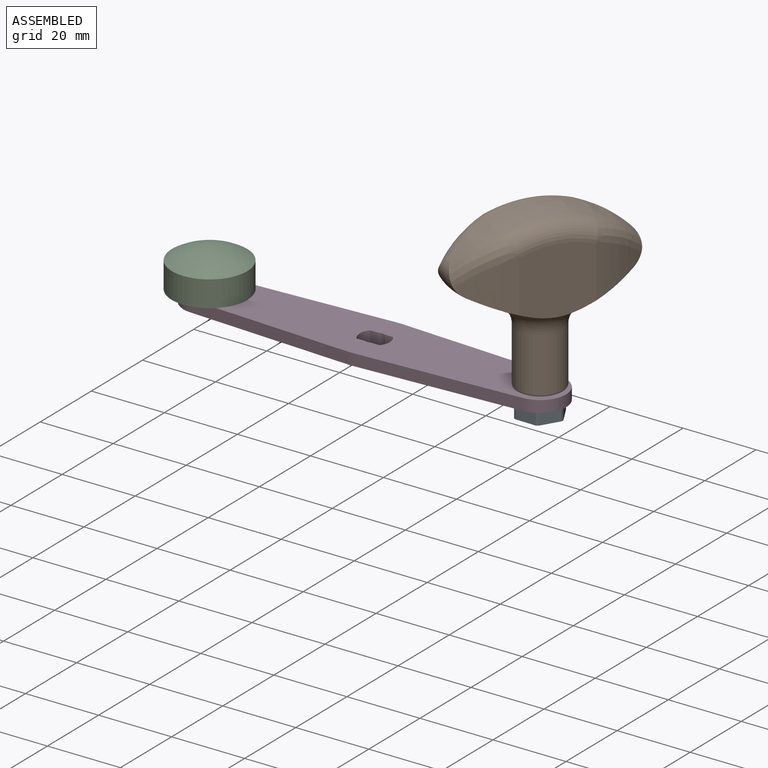
[diagram: assembled view]
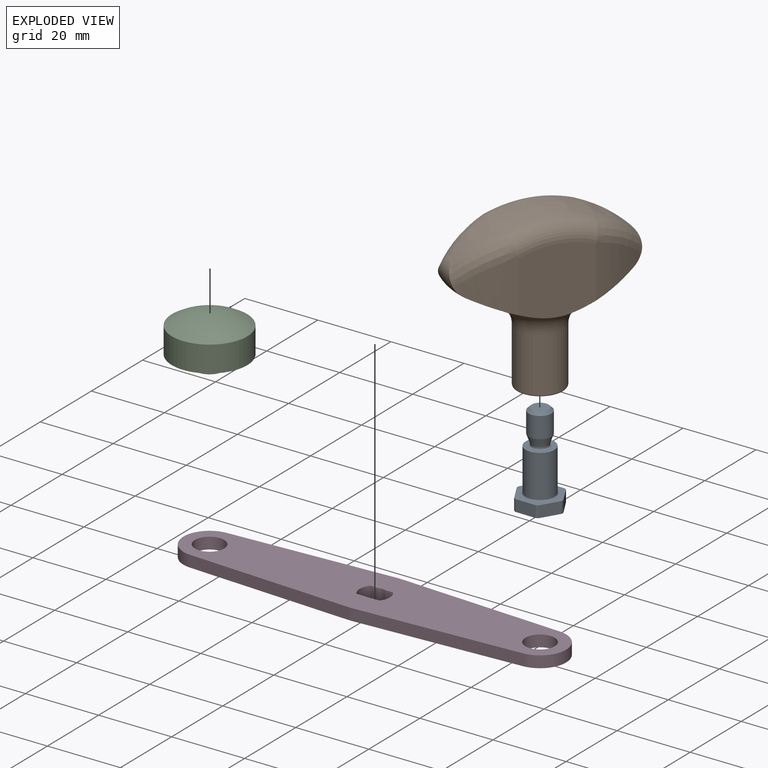
[diagram: exploded view]
GUIDED TOUR — MATED ASSEMBLY (Onshape document a1de85fccab7fe96265ce23a, AutoMate assembly a1de85fccab7fe96265ce23a_24a8b1a81597c6022ee2a4ad_ce4add7e644d38ade0d1b1f0_default)

This assembly has 4 components, labeled P0..P3 below (a component is one placed occurrence of a part; the same part can appear more than once), held together by 3 mates. A mate is a constraint between two components; its type names the relative motion it leaves free:
  FASTENED — locks the two components together rigidly (no relative motion),
  REVOLUTE — leaves rotation about the listed axis free (a hinge).
Axis/direction vectors are unit vectors and 'through' points are millimeter coordinates, both in the assembly's world frame.

MATES
  1. FASTENED "Fastened 1": P0 <-> P1, direction (0.000, 0.000, 1.000) through (45.25, -0.51, 8.32) mm
  2. FASTENED "Fastened 2": P2 <-> P3, direction (0.000, 0.000, -1.000) through (-45.25, -0.51, 0.00) mm
  3. REVOLUTE "Revolute 1": P1 <-> P3, axis (0.000, 0.000, -1.000) through (45.25, -0.51, 0.38) mm

ASSEMBLY ORDER
  1. P1 — the base component [order heuristic]
  2. P0 [order heuristic]
  3. P3 [order heuristic]
  4. P2 [order heuristic]
Order-tag legend:
  [order heuristic] — this assembly is geometrically interlocked (no collision-free removal order exists), so components are listed in mate-graph order; insertion feasibility is not verified.

Of the 4 components, 3 carry the full construction recipe — the FeatureScript program that regenerates the part's solid from scratch; the rest are supplied as boundary geometry only.
Each toured component is shown spotlighted twice — in the assembled view, then in the exploded view, where a leader line traces a displaced component back to its assembled socket (saturated green if recipe-attached, orange if geometry-only; every other component desaturated gray) — followed by its recipe or geometry summary and the mates that hold it.
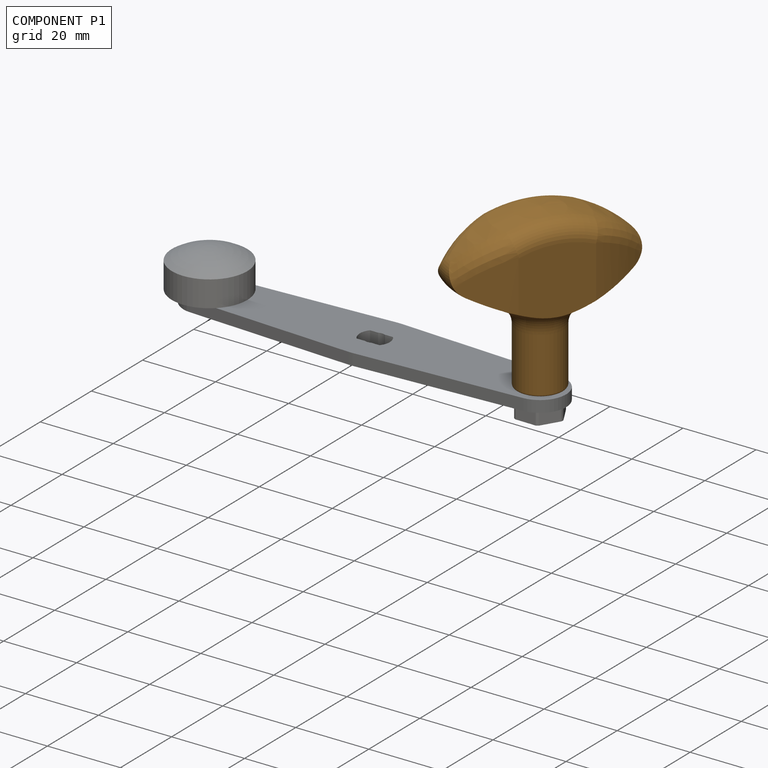
[diagram: component P1 — assembled]
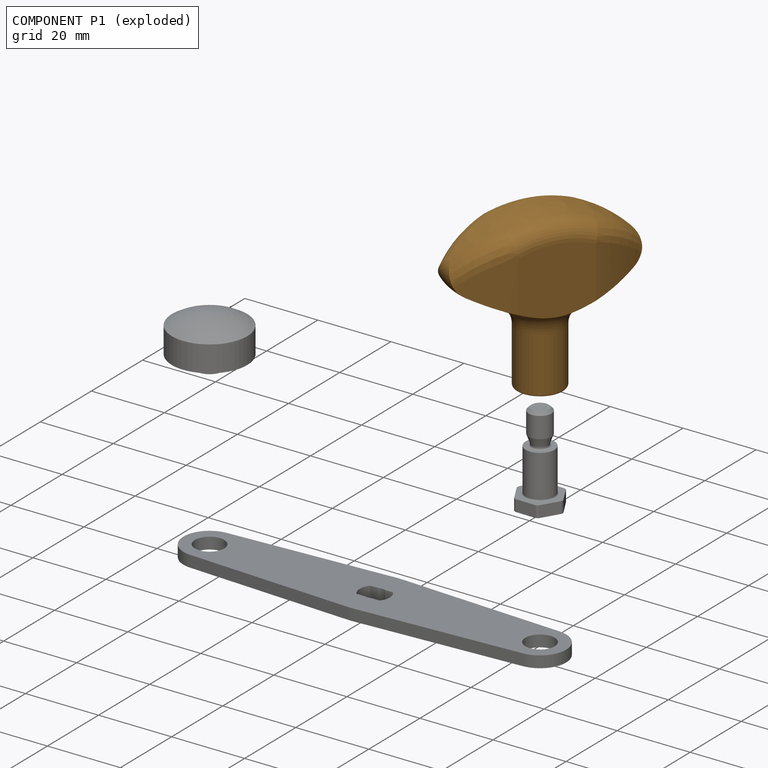
[diagram: component P1 — exploded]
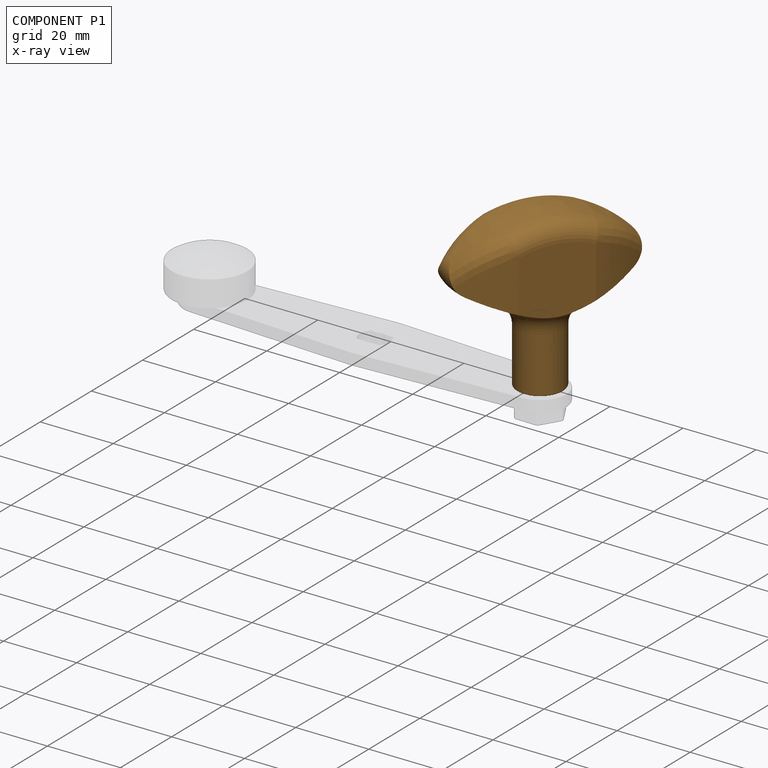
[diagram: component P1 — x-ray view]
COMPONENT P1 — geometry summary (no construction recipe available for this part):
  bounding box: 51.5 x 46.7 x 44.8 mm
  B-rep topology: 1 solid, 25 faces, 124 edges
  volume: 15980 mm^3 (15% of its bounding box)
  symmetry: 2-fold rotationally symmetric about the x axis; mirror-symmetric across its y mid-plane, z mid-plane
Held by: FASTENED mate "Fastened 1" to P0; REVOLUTE mate "Revolute 1" to P3.
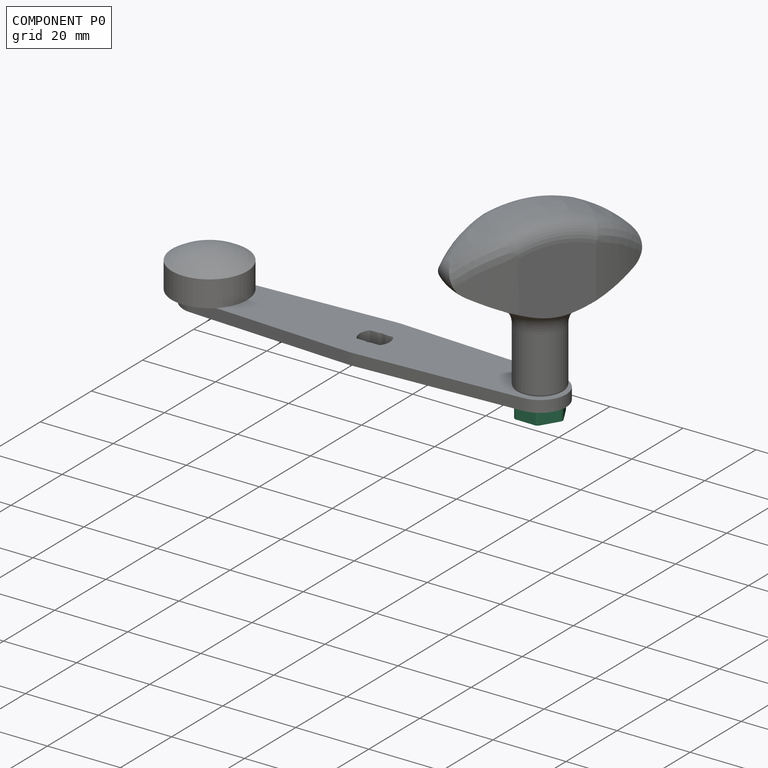
[diagram: component P0 — assembled]
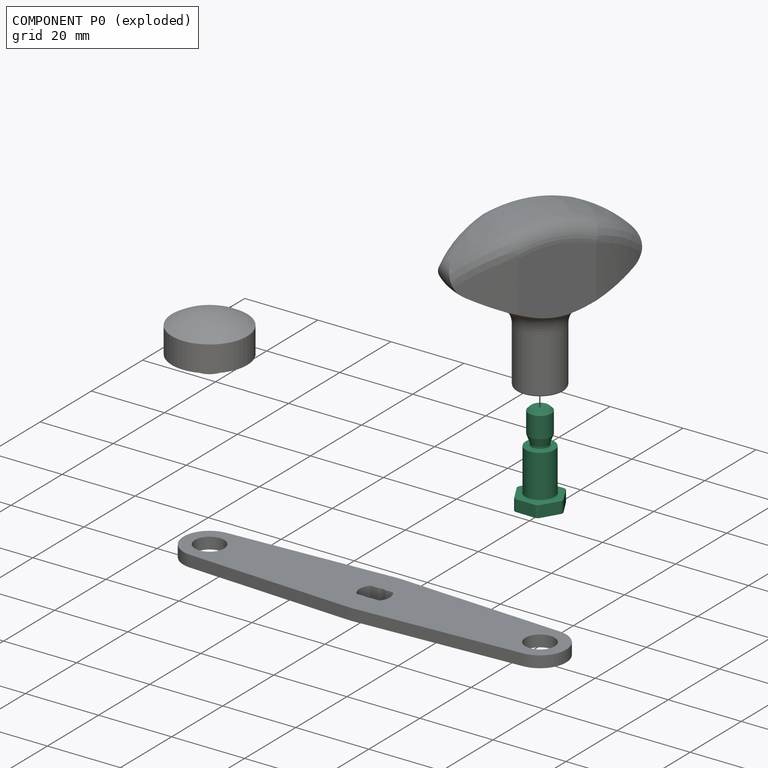
[diagram: component P0 — exploded]
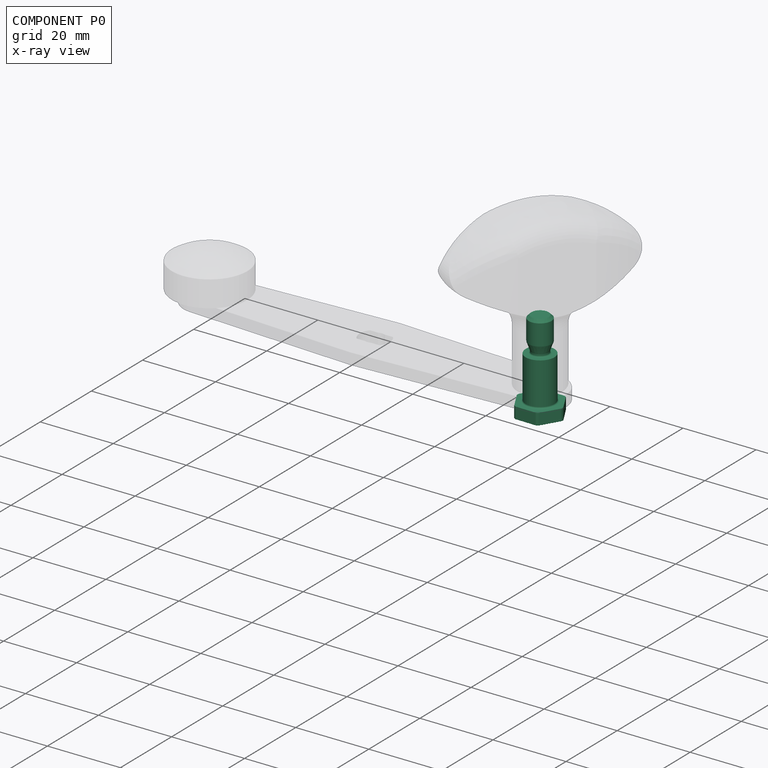
[diagram: component P0 — x-ray view]
COMPONENT P0 — recipe-attached (CADFS 00321309, mesh-verified: the recipe's output STEP matches this component's geometry to below the mesh-comparison resolution (tessellation chordal tolerance ~0.0446 mm)).
Held by: FASTENED mate "Fastened 1" to P1.
Construction recipe (FeatureScript — the CAD program that rebuilds this solid; sketch coordinates are in the units given by the * unit suffixes, e.g. mm):

FeatureScript 1511;
import(path : "onshape/std/geometry.fs", version : "1511.0");
import(path : "onshape/std/common.fs", version : "1511.0");
const mm = millimeter;
const VERTEX = EntityType.VERTEX;
const EDGE = EntityType.EDGE;
const FACE = EntityType.FACE;
const BODY = EntityType.BODY;
function v(x, y){return vector(x, y);}
function OD(order){return orderDisambiguation(order);}
function OSD(set){return originalSetDisambiguation(set);}
function TD(topology){return topologyDisambiguation(topology);}
function TDD(query){return trueDependencyDisambiguation(query);}
function sQuery(a, b, c) {return sketchEntityQuery(a, b, c);}

annotation { "Feature Type Name" : "Feature", "Feature Type Description" : "" }
export const myFeature = defineFeature(function(context is Context, id is Id, definition is map)
    precondition{}
    {
        {
            var Q0;
            Q0=qCreatedBy(makeId("Front.planeOp"),FACE);
            var sketch = newSketch(context, id + "F0", { "sketchPlane" : qUnion([Q0])});
            skLineSegment(sketch, "E0", {"start": v(0, 0) * mm, "end": v(-24.6, 0) * mm});
            skLineSegment(sketch, "E1", {"start": v(-24.6, 0) * mm, "end": v(-24.6, 3.11) * mm});
            skLineSegment(sketch, "E2", {"start": v(-24.6, 3.11) * mm, "end": v(-18.11, 3.11) * mm});
            skLineSegment(sketch, "E3", {"start": v(-15.08, 2.29) * mm, "end": v(-15.08, 3.94) * mm});
            skLineSegment(sketch, "E4", {"start": v(-15.08, 3.94) * mm, "end": v(-3.17, 3.94) * mm});
            skLineSegment(sketch, "E5", {"start": v(-3.18, 3.94) * mm, "end": v(-3.18, 6.22) * mm});
            skLineSegment(sketch, "E6", {"start": v(-3.18, 6.22) * mm, "end": v(0, 6.22) * mm});
            skLineSegment(sketch, "E7", {"start": v(0, 6.22) * mm, "end": v(0, 0) * mm});
            skLineSegment(sketch, "E8", {"start": v(0, 0) * mm, "end": v(5.6, 0) * mm, "construction": true});
            skLineSegment(sketch, "E9", {"start": v(-18.11, 3.11) * mm, "end": v(-15.84, 2.29) * mm});
            skLineSegment(sketch, "E10", {"start": v(-15.84, 2.29) * mm, "end": v(-15.08, 2.29) * mm});
            skSolve(sketch);
        }
        {
            var Q0;
            Q0 = qSketchRegion(id + "F0", true);
            var Q1;
            Q1=sQuery(id+"F0.wireOp",EDGE,"E8");
            revolve(context, id + "F1", {"surfaceOperationType" : NewSurfaceOperationType.NEW, "entities" : qUnion([Q0]), "axis" : qUnion([Q1]), "revolveType" : RevolveType.FULL});
        }
        {
            var Q0;
            Q0=makeQuery(id+"F1.opRevolve","SWEPT_FACE",FACE,{"disambiguationData":[OSD([sQuery(id+"F0.wireOp",EDGE,"E7")])]});
            var sketch = newSketch(context, id + "F2", { "sketchPlane" : qUnion([Q0])});
            skCircle(sketch, "E11.cCircle", {"center": v(0, 0) * mm, "radius": 6.4 * mm, "construction": true});
            skLineSegment(sketch, "E11.0", {"start": v(0, 6.4) * mm, "end": v(5.55, 3.2) * mm});
            skLineSegment(sketch, "E11.1", {"start": v(5.55, 3.2) * mm, "end": v(5.55, -3.2) * mm});
            skLineSegment(sketch, "E11.2", {"start": v(5.55, -3.2) * mm, "end": v(0, -6.4) * mm});
            skLineSegment(sketch, "E11.3", {"start": v(0, -6.4) * mm, "end": v(-5.55, -3.2) * mm});
            skLineSegment(sketch, "E11.4", {"start": v(-5.55, -3.2) * mm, "end": v(-5.55, 3.2) * mm});
            skLineSegment(sketch, "E11.5", {"start": v(-5.55, 3.2) * mm, "end": v(0, 6.4) * mm});
            skSolve(sketch);
        }
        {
            var Q0;
            {var subQ0=sQuery(id+"F2.wireOp",EDGE,"E11.5");Q0=makeQuery(id+"F2.imprint","IMPRINT",FACE,{"disambiguationData":[TD([[makeQuery(id+"F2.imprint","IMPRINT",EDGE,{"derivedFrom":subQ0}),1.0]])]});}
            var Q1;
            {var subQ0=sQuery(id+"F2.wireOp",EDGE,"E11.0");Q1=makeQuery(id+"F2.imprint","IMPRINT",FACE,{"disambiguationData":[TD([[makeQuery(id+"F2.imprint","IMPRINT",EDGE,{"derivedFrom":subQ0}),1.0]])]});}
            var Q2;
            {var subQ0=sQuery(id+"F2.wireOp",EDGE,"E11.1");Q2=makeQuery(id+"F2.imprint","IMPRINT",FACE,{"disambiguationData":[TD([[makeQuery(id+"F2.imprint","IMPRINT",EDGE,{"derivedFrom":subQ0}),1.0]])]});}
            var Q3;
            {var subQ0=sQuery(id+"F2.wireOp",EDGE,"E11.2");Q3=makeQuery(id+"F2.imprint","IMPRINT",FACE,{"disambiguationData":[TD([[makeQuery(id+"F2.imprint","IMPRINT",EDGE,{"derivedFrom":subQ0}),1.0]])]});}
            var Q4;
            {var subQ0=sQuery(id+"F2.wireOp",EDGE,"E11.3");Q4=makeQuery(id+"F2.imprint","IMPRINT",FACE,{"disambiguationData":[TD([[makeQuery(id+"F2.imprint","IMPRINT",EDGE,{"derivedFrom":subQ0}),1.0]])]});}
            var Q5;
            {var subQ0=sQuery(id+"F2.wireOp",EDGE,"E11.4");Q5=makeQuery(id+"F2.imprint","IMPRINT",FACE,{"disambiguationData":[TD([[makeQuery(id+"F2.imprint","IMPRINT",EDGE,{"derivedFrom":subQ0}),1.0]])]});}
            extrude(context, id + "F3", {"entities" : qUnion([Q0, Q1, Q2, Q3, Q4, Q5]), "operationType" : NewBodyOperationType.REMOVE, "endBound" : BoundingType.UP_TO_NEXT, "oppositeDirection" : true, "depth" : 25.4 * mm, "offsetDistance" : 25.4 * mm});
        }
        {
            var Q0;
            Q0=makeQuery(id+"F1.opRevolve","SWEPT_EDGE",EDGE,{"disambiguationData":[OSD([sQuery(id+"F0.wireOp",EDGE,"E1"),sQuery(id+"F0.wireOp",EDGE,"E2")])]});
            chamfer(context, id + "F4", {"entities" : qUnion([Q0]), "width" : 0.76 * mm, "tangentPropagation" : true});
        }
        {
            var Q0;
            Q0=makeQuery(id+"F1.opRevolve","SWEPT_EDGE",EDGE,{"disambiguationData":[OSD([sQuery(id+"F0.wireOp",EDGE,"E4"),sQuery(id+"F0.wireOp",EDGE,"E5")])]});
            fillet(context, id + "F5", {"entities" : qUnion([Q0]), "radius" : 0.38 * mm, "tangentPropagation" : true, "allowEdgeOverflow" : false});
        }
        {
            var Q0;
            Q0=makeQuery(id+"F1.opRevolve","SWEPT_EDGE",EDGE,{"disambiguationData":[OSD([sQuery(id+"F0.wireOp",EDGE,"E3"),sQuery(id+"F0.wireOp",EDGE,"E10")])]});
            fillet(context, id + "F6", {"entities" : qUnion([Q0]), "radius" : 0.38 * mm, "tangentPropagation" : true, "allowEdgeOverflow" : false});
        }
    });
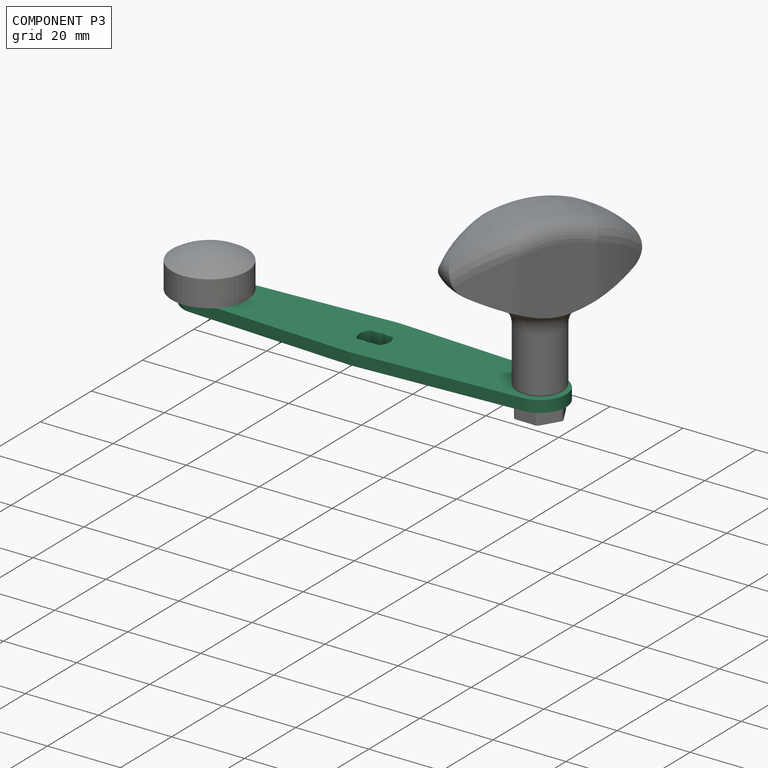
[diagram: component P3 — assembled]
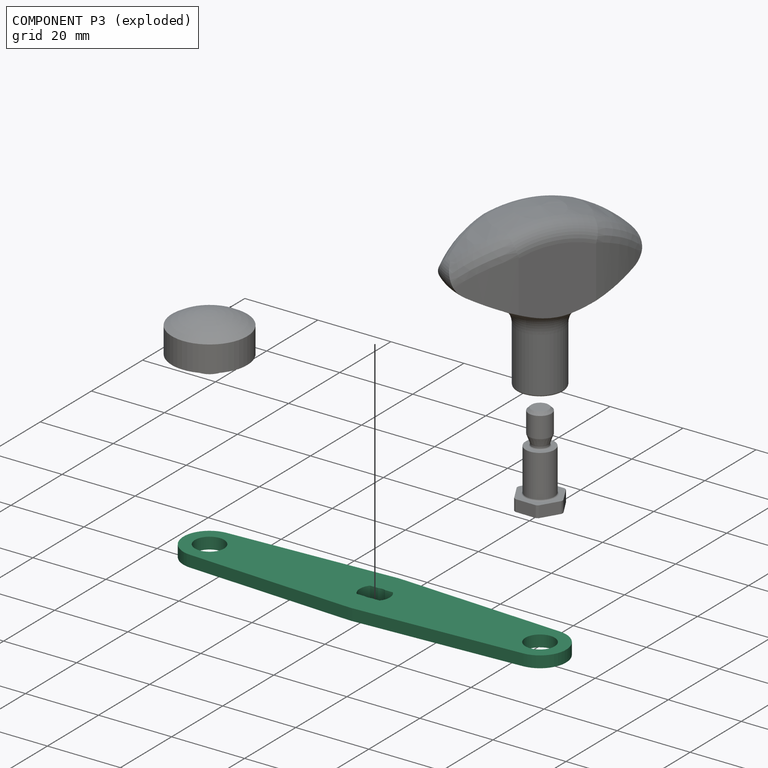
[diagram: component P3 — exploded]
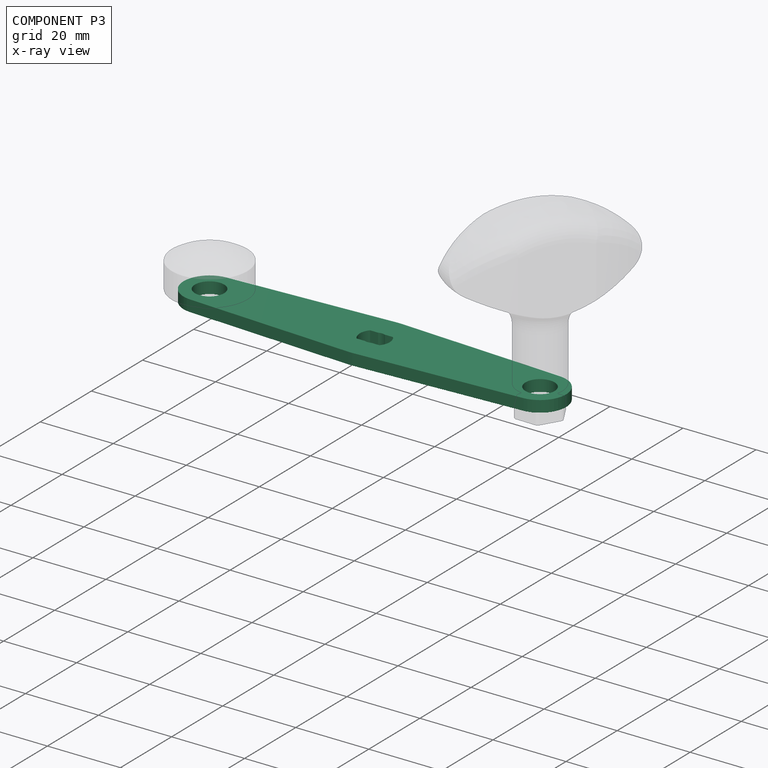
[diagram: component P3 — x-ray view]
COMPONENT P3 — recipe-attached (CADFS 00321307, mesh-verified: the recipe's output STEP matches this component's geometry to below the mesh-comparison resolution (tessellation chordal tolerance ~0.16 mm)).
Held by: FASTENED mate "Fastened 2" to P2; REVOLUTE mate "Revolute 1" to P1.
Construction recipe (FeatureScript — the CAD program that rebuilds this solid; sketch coordinates are in the units given by the * unit suffixes, e.g. mm):

FeatureScript 1511;
import(path : "onshape/std/geometry.fs", version : "1511.0");
import(path : "onshape/std/common.fs", version : "1511.0");
const mm = millimeter;
const VERTEX = EntityType.VERTEX;
const EDGE = EntityType.EDGE;
const FACE = EntityType.FACE;
const BODY = EntityType.BODY;
function v(x, y){return vector(x, y);}
function OD(order){return orderDisambiguation(order);}
function OSD(set){return originalSetDisambiguation(set);}
function TD(topology){return topologyDisambiguation(topology);}
function TDD(query){return trueDependencyDisambiguation(query);}
function sQuery(a, b, c) {return sketchEntityQuery(a, b, c);}

annotation { "Feature Type Name" : "Feature", "Feature Type Description" : "" }
export const myFeature = defineFeature(function(context is Context, id is Id, definition is map)
    precondition{}
    {
        {
            var Q0;
            Q0=qCreatedBy(makeId("Top.planeOp"),FACE);
            var sketch = newSketch(context, id + "F0", { "sketchPlane" : qUnion([Q0])});
            skLineSegment(sketch, "E0.bottom", {"start": v(0, 0) * mm, "end": v(104.77, 0) * mm, "construction": true});
            skLineSegment(sketch, "E0.top", {"start": v(0, -19.05) * mm, "end": v(104.77, -19.05) * mm, "construction": true});
            skLineSegment(sketch, "E0.left", {"start": v(0, 0) * mm, "end": v(0, -19.05) * mm, "construction": true});
            skLineSegment(sketch, "E0.right", {"start": v(104.77, 0) * mm, "end": v(104.77, -19.05) * mm, "construction": true});
            skLineSegment(sketch, "E1", {"start": v(0, -9.52) * mm, "end": v(104.77, -9.52) * mm, "construction": true});
            skLineSegment(sketch, "E2", {"start": v(52.39, 0) * mm, "end": v(52.39, -19.05) * mm, "construction": true});
            skArc(sketch, "E3", {"start": v(6.76, -2.4) * mm, "mid": v(0, -9.52) * mm, "end": v(6.76, -16.65) * mm});
            skArc(sketch, "E4", {"start": v(98.01, -16.65) * mm, "mid": v(104.77, -9.52) * mm, "end": v(98.01, -2.4) * mm});
            skLineSegment(sketch, "E5", {"start": v(6.76, -2.4) * mm, "end": v(51.72, -0.04) * mm});
            skLineSegment(sketch, "E6", {"start": v(6.76, -16.65) * mm, "end": v(51.72, -19.01) * mm});
            skLineSegment(sketch, "E7", {"start": v(53.05, -19.01) * mm, "end": v(98.01, -16.65) * mm});
            skLineSegment(sketch, "E8", {"start": v(98.01, -2.4) * mm, "end": v(53.05, -0.04) * mm});
            skPoint(sketch, "E9.visualSharp", {"position": v(52.39, 0) * mm});
            skArc(sketch, "E9.filletArc", {"start": v(53.05, -0.04) * mm, "mid": v(52.39, -0.02) * mm, "end": v(51.72, -0.04) * mm});
            skPoint(sketch, "E10.visualSharp", {"position": v(52.39, -19.05) * mm});
            skArc(sketch, "E10.filletArc", {"start": v(51.72, -19.01) * mm, "mid": v(52.39, -19.03) * mm, "end": v(53.05, -19.01) * mm});
            skArc(sketch, "E11", {"start": v(49.25, -6.88) * mm, "mid": v(48.29, -9.52) * mm, "end": v(49.25, -12.17) * mm});
            skArc(sketch, "E12", {"start": v(53.34, -6.88) * mm, "mid": v(52.39, -6.72) * mm, "end": v(51.44, -6.88) * mm});
            skLineSegment(sketch, "E13.bottom", {"start": v(55.53, -6.88) * mm, "end": v(53.34, -6.88) * mm});
            skLineSegment(sketch, "E13.top", {"start": v(55.53, -12.17) * mm, "end": v(53.34, -12.17) * mm});
            skArc(sketch, "E14.trimOffspring", {"start": v(55.53, -12.17) * mm, "mid": v(56.49, -9.52) * mm, "end": v(55.53, -6.88) * mm});
            skLineSegment(sketch, "E15.trimOffspring", {"start": v(51.44, -6.88) * mm, "end": v(49.25, -6.88) * mm});
            skLineSegment(sketch, "E16.trimOffspring", {"start": v(51.44, -12.17) * mm, "end": v(49.25, -12.17) * mm});
            skArc(sketch, "E17.trimOffspring", {"start": v(51.44, -12.17) * mm, "mid": v(52.39, -12.33) * mm, "end": v(53.34, -12.17) * mm});
            skCircle(sketch, "E18", {"center": v(7.14, -9.52) * mm, "radius": 4 * mm});
            skCircle(sketch, "E19", {"center": v(97.64, -9.52) * mm, "radius": 4 * mm});
            skSolve(sketch);
        }
        {
            var Q0;
            Q0 = qSketchRegion(id + "F0", true);
            extrude(context, id + "F1", {"entities" : qUnion([Q0]), "oppositeDirection" : true, "offsetDistance" : 25.4 * mm, "depth" : 3.17 * mm});
        }
    });
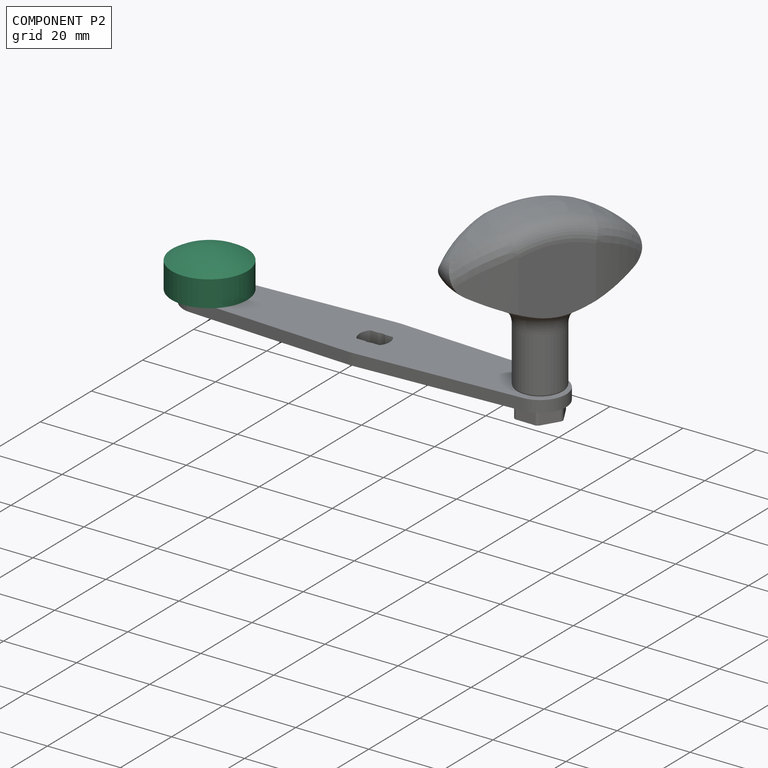
[diagram: component P2 — assembled]
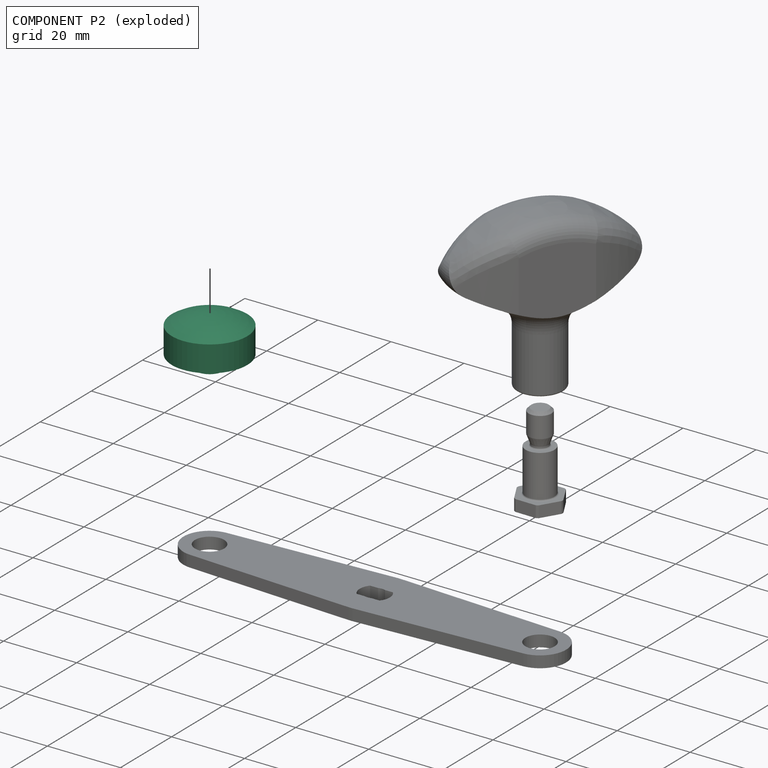
[diagram: component P2 — exploded]
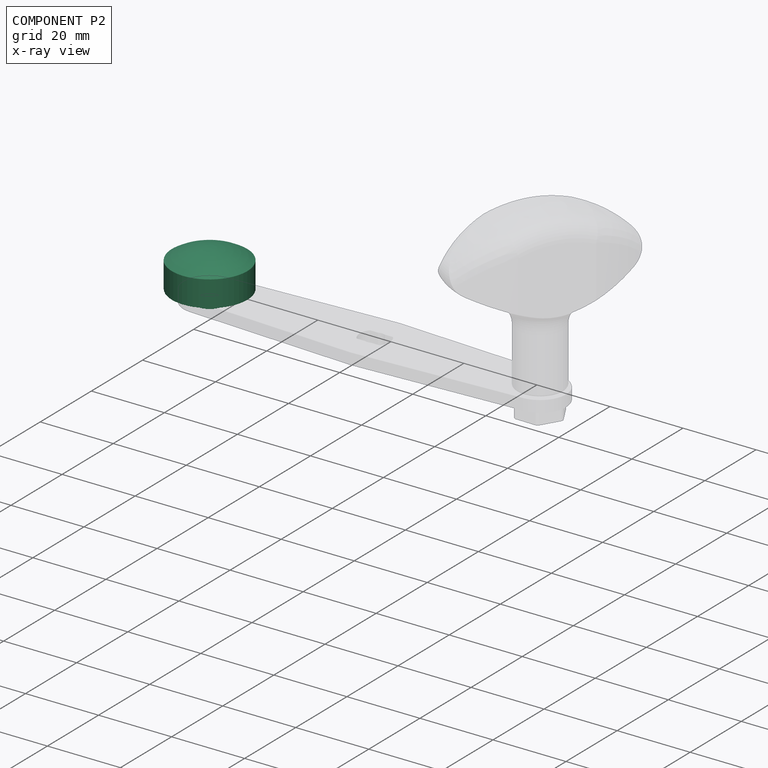
[diagram: component P2 — x-ray view]
COMPONENT P2 — recipe-attached (CADFS 00321310, mesh-verified: the recipe's output STEP matches this component's geometry to below the mesh-comparison resolution (tessellation chordal tolerance ~0.0481 mm)).
Held by: FASTENED mate "Fastened 2" to P3.
Construction recipe (FeatureScript — the CAD program that rebuilds this solid; sketch coordinates are in the units given by the * unit suffixes, e.g. mm):

FeatureScript 1511;
import(path : "onshape/std/geometry.fs", version : "1511.0");
import(path : "onshape/std/common.fs", version : "1511.0");
const mm = millimeter;
const VERTEX = EntityType.VERTEX;
const EDGE = EntityType.EDGE;
const FACE = EntityType.FACE;
const BODY = EntityType.BODY;
function v(x, y){return vector(x, y);}
function OD(order){return orderDisambiguation(order);}
function OSD(set){return originalSetDisambiguation(set);}
function TD(topology){return topologyDisambiguation(topology);}
function TDD(query){return trueDependencyDisambiguation(query);}
function sQuery(a, b, c) {return sketchEntityQuery(a, b, c);}

annotation { "Feature Type Name" : "Feature", "Feature Type Description" : "" }
export const myFeature = defineFeature(function(context is Context, id is Id, definition is map)
    precondition{}
    {
        {
            var Q0;
            Q0=qCreatedBy(makeId("Front.planeOp"),FACE);
            var sketch = newSketch(context, id + "F0", { "sketchPlane" : qUnion([Q0])});
            skLineSegment(sketch, "E0", {"start": v(0, 0) * mm, "end": v(-13.35, 0) * mm});
            skLineSegment(sketch, "E1", {"start": v(-13.35, 0) * mm, "end": v(-13.35, 3.97) * mm});
            skLineSegment(sketch, "E2", {"start": v(-13.35, 3.97) * mm, "end": v(-10.17, 3.97) * mm});
            skLineSegment(sketch, "E3", {"start": v(-10.17, 3.97) * mm, "end": v(-10.17, 10.32) * mm});
            skLineSegment(sketch, "E4", {"start": v(-10.17, 10.32) * mm, "end": v(-3.04, 10.32) * mm});
            skArc(sketch, "E5", {"start": v(0, 0) * mm, "mid": v(-0.77, 5.38) * mm, "end": v(-3.04, 10.32) * mm});
            skLineSegment(sketch, "E6", {"start": v(0, 0) * mm, "end": v(13.3, 0) * mm, "construction": true});
            skSolve(sketch);
        }
        {
            var Q0;
            Q0=makeQuery(id+"F0.imprint","IMPRINT",FACE,{"disambiguationData":[TD([[makeQuery(id+"F0.imprint","IMPRINT",EDGE,{"derivedFrom":sQuery(id+"F0.wireOp",EDGE,"E0")}),-1.0]])]});
            var Q1;
            Q1=sQuery(id+"F0.wireOp",EDGE,"E6");
            revolve(context, id + "F1", {"surfaceOperationType" : NewSurfaceOperationType.NEW, "entities" : qUnion([Q0]), "axis" : qUnion([Q1]), "revolveType" : RevolveType.FULL});
        }
    });
PROVENANCE & LICENSES
Assembly (occurrences, transforms, mates, per-part STEP geometry): AutoMate dataset, Zenodo record 7776208, CC0.
Construction recipes: CADFS (HuggingFace VladPyatov/CADFS, CC-BY-4.0, layered over the ABC dataset), FeatureScript reconstruction programs keyed by ABC model id.
Join: ABC meta listings map ABC model id -> Onshape documentId; within a shared document, parts are matched by geometric signature (bounding-box dims + volume at 0.1% relative tolerance, exact B-rep face/solid counts).
Verification: 3 of this assembly's 4 components carry a recipe attachment, and every attachment is mesh-verified: the CADFS STEP and the AutoMate member STEP were compared as meshes in their shared local frame (symmetric sampled-point-to-mesh distance); worst across the 3 attachments: below the mesh-comparison resolution (tessellation chordal tolerance ~0.16 mm) on a 106 mm part.
Renders: orthographic iso camera (az 35 / el 25); the floor grid conveys scale (grid pitch printed in each image; no ruler). In the exploded view each component is displaced by its stored offset vector: the offsets alone carry the explosion direction (mate normal/axis signs are not orientation cues and do not encode it), and separation distances are assigned per mate-chain, not proportionally to assembly-order depth.
